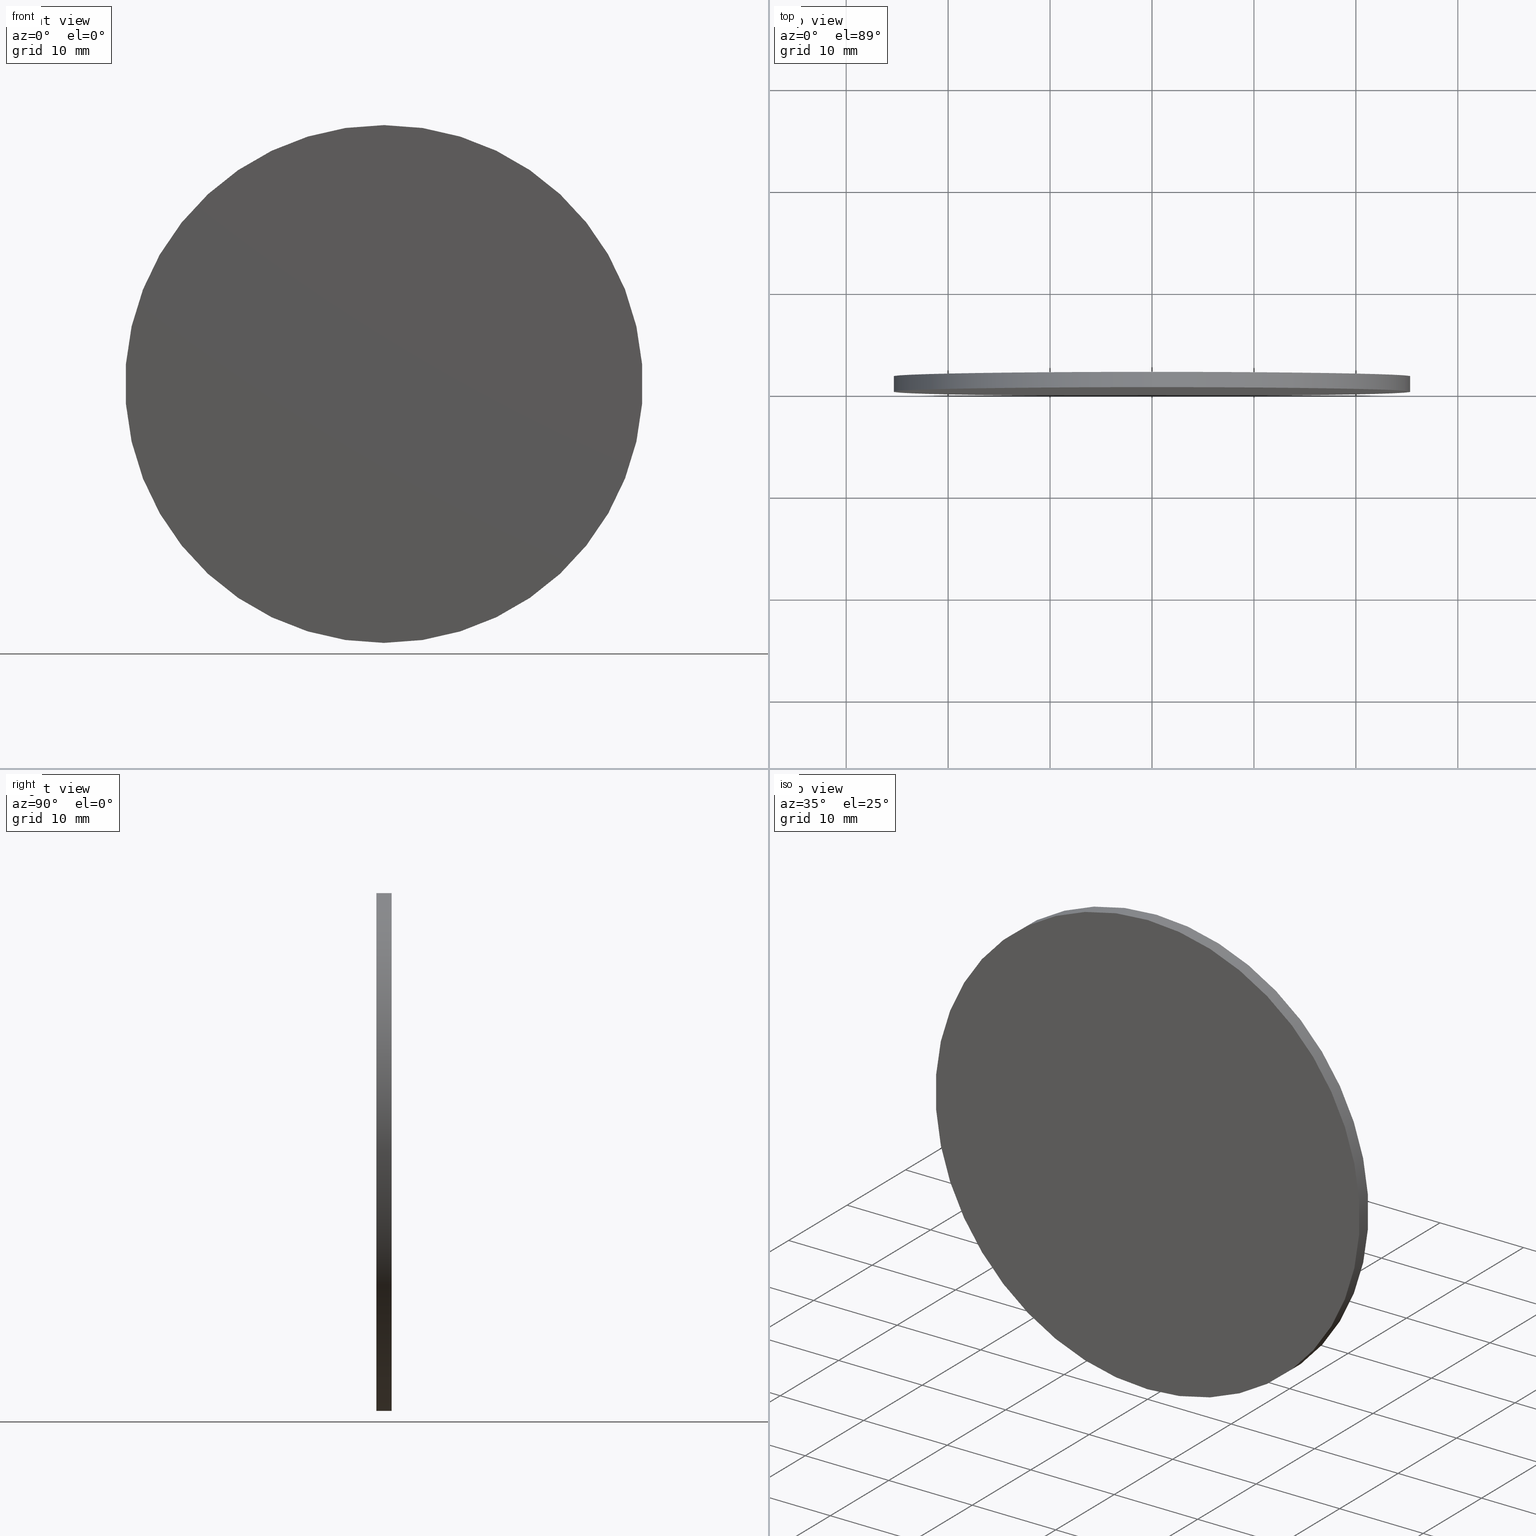
[diagram: canonical four-view strip — front | top / right | iso, engineering-drawing reading convention]
A machine part, canonical four-view strip (front | top / right | iso — engineering-drawing reading convention). The complete STEP part file that produces these views, byte-faithful:
ISO-10303-21;
HEADER;
FILE_DESCRIPTION (( 'STEP AP214' ),
    '1' );
FILE_NAME ('350504.STEP',
    '2019-08-14T06:04:19',
    ( 'user' ),
    ( '΢���й�' ),
    'SwSTEP 2.0',
    'SolidWorks 2016',
    '' );
FILE_SCHEMA (( 'AUTOMOTIVE_DESIGN' ));
ENDSEC;

DATA;
#1 = AXIS2_PLACEMENT_3D ( 'NONE', #67, #112, #40 ) ;
#2 = AXIS2_PLACEMENT_3D ( 'NONE', #136, #78, #97 ) ;
#3 = DIRECTION ( 'NONE',  ( 0.0000000000000000000, 0.0000000000000000000, 1.000000000000000000 ) ) ;
#4 = FILL_AREA_STYLE_COLOUR ( '', #69 ) ;
#5 = ADVANCED_BREP_SHAPE_REPRESENTATION ( '350504', ( #36, #35 ), #108 ) ;
#6 =( GEOMETRIC_REPRESENTATION_CONTEXT ( 3 ) GLOBAL_UNCERTAINTY_ASSIGNED_CONTEXT ( ( #70 ) ) GLOBAL_UNIT_ASSIGNED_CONTEXT ( ( #28, #84, #98 ) ) REPRESENTATION_CONTEXT ( 'NONE', 'WORKASPACE' ) );
#7 = AXIS2_PLACEMENT_3D ( 'NONE', #9, #131, #65 ) ;
#8 = CIRCLE ( 'NONE', #75, 25.39999999999999900 ) ;
#9 = CARTESIAN_POINT ( 'NONE',  ( 0.0000000000000000000, 1.500000000000000000, 0.0000000000000000000 ) ) ;
#10 = DIRECTION ( 'NONE',  ( -0.0000000000000000000, -1.000000000000000000, -0.0000000000000000000 ) ) ;
#11 = VECTOR ( 'NONE', #10, 1000.000000000000000 ) ;
#12 = APPLICATION_CONTEXT ( 'automotive_design' ) ;
#13 = ADVANCED_FACE ( 'NONE', ( #132 ), #122, .T. ) ;
#14 =( NAMED_UNIT ( * ) PLANE_ANGLE_UNIT ( ) SI_UNIT ( $, .RADIAN. ) );
#15 = DIRECTION ( 'NONE',  ( 0.0000000000000000000, 1.000000000000000000, 0.0000000000000000000 ) ) ;
#16 = FILL_AREA_STYLE ('',( #4 ) ) ;
#17 = CLOSED_SHELL ( 'NONE', ( #66, #105, #13, #56 ) ) ;
#18 = CARTESIAN_POINT ( 'NONE',  ( 0.0000000000000000000, 1.500000000000000000, -25.39999999999999900 ) ) ;
#19 = PRODUCT_DEFINITION_CONTEXT ( 'detailed design', #48, 'design' ) ;
#20 = PRESENTATION_STYLE_ASSIGNMENT (( #53 ) ) ;
#21 = EDGE_CURVE ( 'NONE', #80, #137, #74, .T. ) ;
#22 = CARTESIAN_POINT ( 'NONE',  ( 0.0000000000000000000, 1.500000000000000000, 0.0000000000000000000 ) ) ;
#23 = CYLINDRICAL_SURFACE ( 'NONE', #101, 25.39999999999999900 ) ;
#24 = CARTESIAN_POINT ( 'NONE',  ( 0.0000000000000000000, 1.500000000000000000, 0.0000000000000000000 ) ) ;
#25 = CARTESIAN_POINT ( 'NONE',  ( 0.0000000000000000000, 0.0000000000000000000, 0.0000000000000000000 ) ) ;
#26 =( LENGTH_UNIT ( ) NAMED_UNIT ( * ) SI_UNIT ( .MILLI., .METRE. ) );
#27 = ORIENTED_EDGE ( 'NONE', *, *, #21, .F. ) ;
#28 =( LENGTH_UNIT ( ) NAMED_UNIT ( * ) SI_UNIT ( .MILLI., .METRE. ) );
#29 = DIRECTION ( 'NONE',  ( 0.0000000000000000000, 0.0000000000000000000, 1.000000000000000000 ) ) ;
#30 = CARTESIAN_POINT ( 'NONE',  ( 0.0000000000000000000, 1.500000000000000000, 0.0000000000000000000 ) ) ;
#31 = DIRECTION ( 'NONE',  ( 0.0000000000000000000, 0.0000000000000000000, -1.000000000000000000 ) ) ;
#32 = APPLICATION_PROTOCOL_DEFINITION ( 'draft international standard', 'automotive_design', 1998, #12 ) ;
#33 = DIRECTION ( 'NONE',  ( -0.0000000000000000000, -1.000000000000000000, -0.0000000000000000000 ) ) ;
#34 = ORIENTED_EDGE ( 'NONE', *, *, #130, .F. ) ;
#35 = AXIS2_PLACEMENT_3D ( 'NONE', #25, #29, #44 ) ;
#36 = MANIFOLD_SOLID_BREP ( '͹̨-����1', #17 ) ;
#37 = STYLED_ITEM ( 'NONE', ( #20 ), #36 ) ;
#38 = CARTESIAN_POINT ( 'NONE',  ( 0.0000000000000000000, 0.0000000000000000000, 0.0000000000000000000 ) ) ;
#39 = VERTEX_POINT ( 'NONE', #121 ) ;
#40 = DIRECTION ( 'NONE',  ( 0.0000000000000000000, 0.0000000000000000000, 1.000000000000000000 ) ) ;
#41 = DIRECTION ( 'NONE',  ( 0.0000000000000000000, -0.0000000000000000000, 1.000000000000000000 ) ) ;
#42 = CARTESIAN_POINT ( 'NONE',  ( 3.110602869834276900E-015, 1.500000000000000000, 25.39999999999999900 ) ) ;
#43 = PRODUCT_DEFINITION ( 'δ֪', '', #47, #19 ) ;
#44 = DIRECTION ( 'NONE',  ( 1.000000000000000000, 0.0000000000000000000, 0.0000000000000000000 ) ) ;
#45 = SURFACE_SIDE_STYLE ('',( #73 ) ) ;
#46 = ORIENTED_EDGE ( 'NONE', *, *, #61, .T. ) ;
#47 = PRODUCT_DEFINITION_FORMATION_WITH_SPECIFIED_SOURCE ( '�κ�', '', #96, .NOT_KNOWN. ) ;
#48 = APPLICATION_CONTEXT ( 'automotive_design' ) ;
#49 = CIRCLE ( 'NONE', #100, 25.39999999999999900 ) ;
#50 = MECHANICAL_DESIGN_GEOMETRIC_PRESENTATION_REPRESENTATION (  '', ( #37 ), #127 ) ;
#51 = SURFACE_STYLE_FILL_AREA ( #85 ) ;
#52 = EDGE_CURVE ( 'NONE', #39, #139, #49, .T. ) ;
#53 = SURFACE_STYLE_USAGE ( .BOTH. , #115 ) ;
#54 = EDGE_LOOP ( 'NONE', ( #114, #57, #62, #81 ) ) ;
#55 = PRODUCT_RELATED_PRODUCT_CATEGORY ( 'part', '', ( #96 ) ) ;
#56 = ADVANCED_FACE ( 'NONE', ( #87 ), #119, .F. ) ;
#57 = ORIENTED_EDGE ( 'NONE', *, *, #123, .T. ) ;
#58 = FILL_AREA_STYLE_COLOUR ( '', #99 ) ;
#59 = CARTESIAN_POINT ( 'NONE',  ( 0.0000000000000000000, 1.500000000000000000, -25.39999999999999900 ) ) ;
#60 = ORIENTED_EDGE ( 'NONE', *, *, #113, .T. ) ;
#61 = EDGE_CURVE ( 'NONE', #139, #137, #120, .T. ) ;
#62 = ORIENTED_EDGE ( 'NONE', *, *, #21, .T. ) ;
#63 = PRESENTATION_STYLE_ASSIGNMENT (( #93 ) ) ;
#64 = FACE_OUTER_BOUND ( 'NONE', #54, .T. ) ;
#65 = DIRECTION ( 'NONE',  ( 0.0000000000000000000, -0.0000000000000000000, 1.000000000000000000 ) ) ;
#66 = ADVANCED_FACE ( 'NONE', ( #64 ), #129, .T. ) ;
#67 = CARTESIAN_POINT ( 'NONE',  ( 0.0000000000000000000, 0.0000000000000000000, 0.0000000000000000000 ) ) ;
#68 = DIRECTION ( 'NONE',  ( 0.0000000000000000000, 0.0000000000000000000, -1.000000000000000000 ) ) ;
#69 = COLOUR_RGB ( '',1.000000000000000000, 1.000000000000000000, 1.000000000000000000 ) ;
#70 = UNCERTAINTY_MEASURE_WITH_UNIT (LENGTH_MEASURE( 1.000000000000000100E-005 ), #28, 'distance_accuracy_value', 'NONE');
#71 = VECTOR ( 'NONE', #124, 1000.000000000000000 ) ;
#72 = ORIENTED_EDGE ( 'NONE', *, *, #52, .T. ) ;
#73 = SURFACE_STYLE_FILL_AREA ( #16 ) ;
#74 = CIRCLE ( 'NONE', #2, 25.39999999999999900 ) ;
#75 = AXIS2_PLACEMENT_3D ( 'NONE', #30, #15, #3 ) ;
#76 = DIRECTION ( 'NONE',  ( 0.0000000000000000000, 1.000000000000000000, 0.0000000000000000000 ) ) ;
#77 = EDGE_LOOP ( 'NONE', ( #34, #27 ) ) ;
#78 = DIRECTION ( 'NONE',  ( 0.0000000000000000000, 1.000000000000000000, 0.0000000000000000000 ) ) ;
#79 = CARTESIAN_POINT ( 'NONE',  ( 0.0000000000000000000, 1.500000000000000000, 0.0000000000000000000 ) ) ;
#80 = VERTEX_POINT ( 'NONE', #94 ) ;
#81 = ORIENTED_EDGE ( 'NONE', *, *, #61, .F. ) ;
#82 =( NAMED_UNIT ( * ) SI_UNIT ( $, .STERADIAN. ) SOLID_ANGLE_UNIT ( ) );
#83 =( NAMED_UNIT ( * ) SI_UNIT ( $, .STERADIAN. ) SOLID_ANGLE_UNIT ( ) );
#84 =( NAMED_UNIT ( * ) PLANE_ANGLE_UNIT ( ) SI_UNIT ( $, .RADIAN. ) );
#85 = FILL_AREA_STYLE ('',( #58 ) ) ;
#86 = PRODUCT_DEFINITION_SHAPE ( 'NONE', 'NONE',  #43 ) ;
#87 = FACE_OUTER_BOUND ( 'NONE', #77, .T. ) ;
#88 = LINE ( 'NONE', #42, #11 ) ;
#89 = AXIS2_PLACEMENT_3D ( 'NONE', #22, #33, #31 ) ;
#90 = CIRCLE ( 'NONE', #1, 25.39999999999999900 ) ;
#91 =( NAMED_UNIT ( * ) PLANE_ANGLE_UNIT ( ) SI_UNIT ( $, .RADIAN. ) );
#92 = ORIENTED_EDGE ( 'NONE', *, *, #113, .F. ) ;
#93 = SURFACE_STYLE_USAGE ( .BOTH. , #45 ) ;
#94 = CARTESIAN_POINT ( 'NONE',  ( 3.110602869834276900E-015, 0.0000000000000000000, 25.39999999999999900 ) ) ;
#95 = FACE_OUTER_BOUND ( 'NONE', #126, .T. ) ;
#96 = PRODUCT ( '350504', '350504', '', ( #134 ) ) ;
#97 = DIRECTION ( 'NONE',  ( 0.0000000000000000000, 0.0000000000000000000, 1.000000000000000000 ) ) ;
#98 =( NAMED_UNIT ( * ) SI_UNIT ( $, .STERADIAN. ) SOLID_ANGLE_UNIT ( ) );
#99 = COLOUR_RGB ( '',1.000000000000000000, 1.000000000000000000, 1.000000000000000000 ) ;
#100 = AXIS2_PLACEMENT_3D ( 'NONE', #24, #117, #135 ) ;
#101 = AXIS2_PLACEMENT_3D ( 'NONE', #79, #109, #68 ) ;
#102 = AXIS2_PLACEMENT_3D ( 'NONE', #38, #76, #41 ) ;
#103 = SHAPE_DEFINITION_REPRESENTATION ( #86, #5 ) ;
#104 = ORIENTED_EDGE ( 'NONE', *, *, #123, .F. ) ;
#105 = ADVANCED_FACE ( 'NONE', ( #95 ), #23, .T. ) ;
#106 = ORIENTED_EDGE ( 'NONE', *, *, #130, .T. ) ;
#107 = UNCERTAINTY_MEASURE_WITH_UNIT (LENGTH_MEASURE( 1.000000000000000100E-005 ), #111, 'distance_accuracy_value', 'NONE');
#108 =( GEOMETRIC_REPRESENTATION_CONTEXT ( 3 ) GLOBAL_UNCERTAINTY_ASSIGNED_CONTEXT ( ( #118 ) ) GLOBAL_UNIT_ASSIGNED_CONTEXT ( ( #26, #91, #82 ) ) REPRESENTATION_CONTEXT ( 'NONE', 'WORKASPACE' ) );
#109 = DIRECTION ( 'NONE',  ( -0.0000000000000000000, -1.000000000000000000, -0.0000000000000000000 ) ) ;
#110 = CARTESIAN_POINT ( 'NONE',  ( 0.0000000000000000000, 0.0000000000000000000, -25.39999999999999900 ) ) ;
#111 =( LENGTH_UNIT ( ) NAMED_UNIT ( * ) SI_UNIT ( .MILLI., .METRE. ) );
#112 = DIRECTION ( 'NONE',  ( 0.0000000000000000000, 1.000000000000000000, 0.0000000000000000000 ) ) ;
#113 = EDGE_CURVE ( 'NONE', #139, #39, #8, .T. ) ;
#114 = ORIENTED_EDGE ( 'NONE', *, *, #52, .F. ) ;
#115 = SURFACE_SIDE_STYLE ('',( #51 ) ) ;
#116 = EDGE_LOOP ( 'NONE', ( #60, #72 ) ) ;
#117 = DIRECTION ( 'NONE',  ( 0.0000000000000000000, 1.000000000000000000, 0.0000000000000000000 ) ) ;
#118 = UNCERTAINTY_MEASURE_WITH_UNIT (LENGTH_MEASURE( 1.000000000000000100E-005 ), #26, 'distance_accuracy_value', 'NONE');
#119 = PLANE ( 'NONE',  #102 ) ;
#120 = LINE ( 'NONE', #18, #71 ) ;
#121 = CARTESIAN_POINT ( 'NONE',  ( 3.110602869834276900E-015, 1.500000000000000000, 25.39999999999999900 ) ) ;
#122 = PLANE ( 'NONE',  #7 ) ;
#123 = EDGE_CURVE ( 'NONE', #39, #80, #88, .T. ) ;
#124 = DIRECTION ( 'NONE',  ( -0.0000000000000000000, -1.000000000000000000, -0.0000000000000000000 ) ) ;
#125 = APPLICATION_PROTOCOL_DEFINITION ( 'draft international standard', 'automotive_design', 1998, #48 ) ;
#126 = EDGE_LOOP ( 'NONE', ( #104, #92, #46, #106 ) ) ;
#127 =( GEOMETRIC_REPRESENTATION_CONTEXT ( 3 ) GLOBAL_UNCERTAINTY_ASSIGNED_CONTEXT ( ( #107 ) ) GLOBAL_UNIT_ASSIGNED_CONTEXT ( ( #111, #14, #83 ) ) REPRESENTATION_CONTEXT ( 'NONE', 'WORKASPACE' ) );
#128 = STYLED_ITEM ( 'NONE', ( #63 ), #5 ) ;
#129 = CYLINDRICAL_SURFACE ( 'NONE', #89, 25.39999999999999900 ) ;
#130 = EDGE_CURVE ( 'NONE', #137, #80, #90, .T. ) ;
#131 = DIRECTION ( 'NONE',  ( 0.0000000000000000000, 1.000000000000000000, 0.0000000000000000000 ) ) ;
#132 = FACE_OUTER_BOUND ( 'NONE', #116, .T. ) ;
#133 = PRESENTATION_LAYER_ASSIGNMENT (  '', '', ( #128 ) ) ;
#134 = PRODUCT_CONTEXT ( 'NONE', #12, 'mechanical' ) ;
#135 = DIRECTION ( 'NONE',  ( 0.0000000000000000000, 0.0000000000000000000, 1.000000000000000000 ) ) ;
#136 = CARTESIAN_POINT ( 'NONE',  ( 0.0000000000000000000, 0.0000000000000000000, 0.0000000000000000000 ) ) ;
#137 = VERTEX_POINT ( 'NONE', #110 ) ;
#138 = PRESENTATION_LAYER_ASSIGNMENT (  '', '', ( #37 ) ) ;
#139 = VERTEX_POINT ( 'NONE', #59 ) ;
#140 = MECHANICAL_DESIGN_GEOMETRIC_PRESENTATION_REPRESENTATION (  '', ( #128 ), #6 ) ;
ENDSEC;
END-ISO-10303-21;
